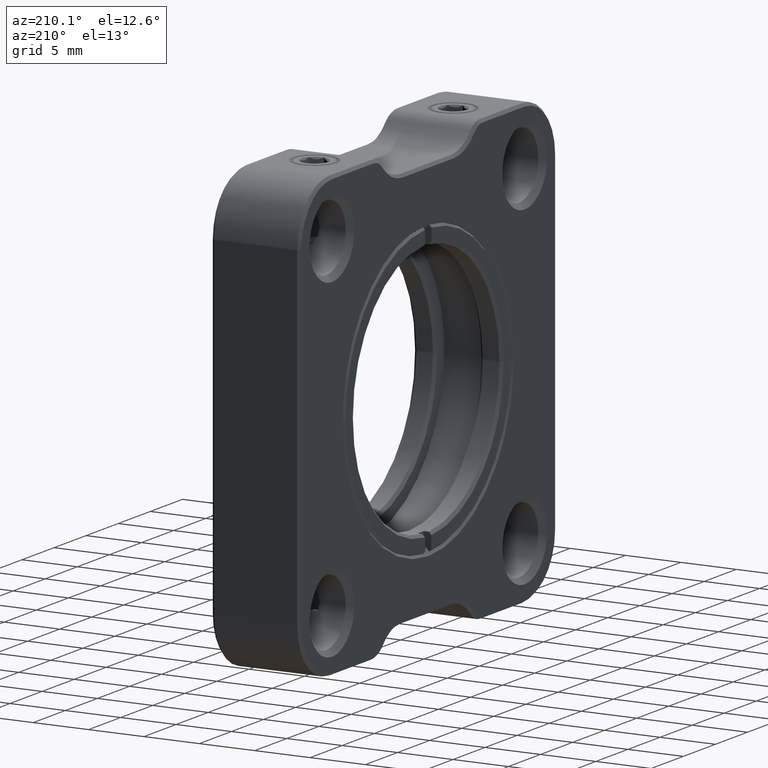
[diagram: clean part render]
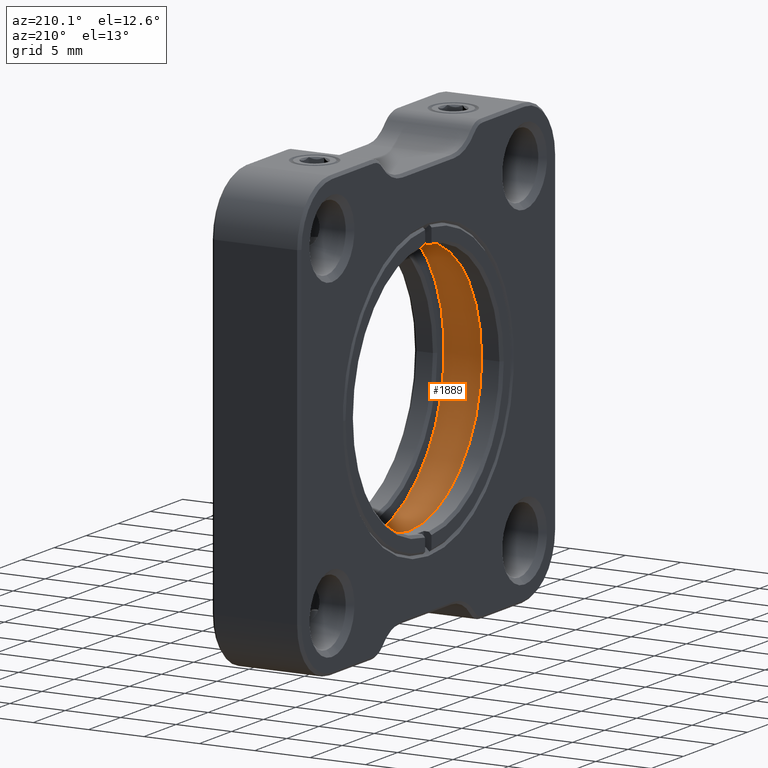
[diagram: same view with one face highlighted and labeled with its STEP entity id]
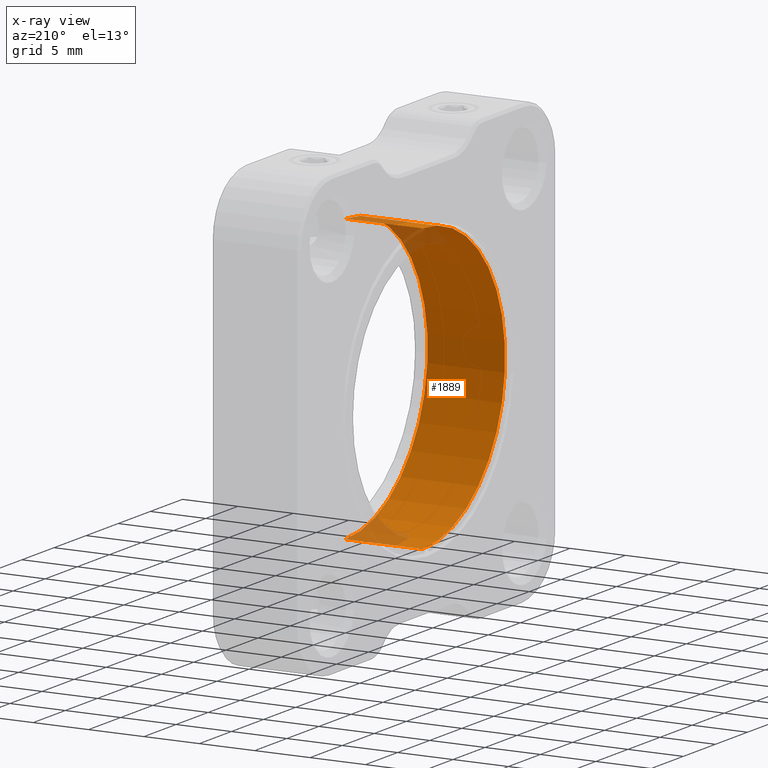
[diagram: x-ray of the same camera — body ghosted, the highlighted face saturated]
A machine part, auxiliary view. The second image highlights one B-rep face of the part: STEP entity #1889.
The next image is the same camera in x-ray: the body ghosted, the highlighted face saturated — about 8% of this face is hidden behind the body in this view.
In plain terms, the highlighted cylindrical surface (partial cylindrical patch) has radius 12.827 mm, axis along (1, -0, -0).
Its self-contained STEP definition (entity closure, byte-faithful):
#220 = EDGE_CURVE ( 'NONE', #5485, #6014, #4903, .T. ) ;
#247 = FACE_OUTER_BOUND ( 'NONE', #9667, .T. ) ;
#687 = EDGE_CURVE ( 'NONE', #5485, #3183, #7738, .T. ) ;
#949 = DIRECTION ( 'NONE',  ( -1.000000000000000000, -0.000000000000000000, -0.000000000000000000 ) ) ;
#965 = CIRCLE ( 'NONE', #7767, 12.82699999999999818 ) ;
#1061 = DIRECTION ( 'NONE',  ( 1.000000000000000000, -0.000000000000000000, -0.000000000000000000 ) ) ;
#1111 = VECTOR ( 'NONE', #4185, 1000.000000000000000 ) ;
#1677 = AXIS2_PLACEMENT_3D ( 'NONE', #4345, #6927, #8451 ) ;
#1889 = ADVANCED_FACE ( 'NONE', ( #247 ), #6467, .F. ) ;
#1999 = ORIENTED_EDGE ( 'NONE', *, *, #9359, .T. ) ;
#2545 = DIRECTION ( 'NONE',  ( 0.000000000000000000, 0.000000000000000000, -1.000000000000000000 ) ) ;
#2630 = CARTESIAN_POINT ( 'NONE',  ( -18.70960063692994879, 2.109301223409111525, 52.82700000000001239 ) ) ;
#2971 = ORIENTED_EDGE ( 'NONE', *, *, #687, .T. ) ;
#3147 = AXIS2_PLACEMENT_3D ( 'NONE', #4793, #949, #2545 ) ;
#3183 = VERTEX_POINT ( 'NONE', #8738 ) ;
#4185 = DIRECTION ( 'NONE',  ( 1.000000000000000000, -0.000000000000000000, -0.000000000000000000 ) ) ;
#4345 = CARTESIAN_POINT ( 'NONE',  ( -18.70960063692994879, 2.109301223409109749, 40.00000000000001421 ) ) ;
#4793 = CARTESIAN_POINT ( 'NONE',  ( -18.20960063692995234, 2.109301223409109749, 40.00000000000001421 ) ) ;
#4903 = LINE ( 'NONE', #7821, #1111 ) ;
#4930 = VECTOR ( 'NONE', #1061, 1000.000000000000000 ) ;
#5485 = VERTEX_POINT ( 'NONE', #7422 ) ;
#6014 = VERTEX_POINT ( 'NONE', #6942 ) ;
#6050 = DIRECTION ( 'NONE',  ( 1.000000000000000000, 0.000000000000000000, 0.000000000000000000 ) ) ;
#6089 = ORIENTED_EDGE ( 'NONE', *, *, #220, .F. ) ;
#6327 = ORIENTED_EDGE ( 'NONE', *, *, #7744, .T. ) ;
#6467 = CYLINDRICAL_SURFACE ( 'NONE', #1677, 12.82699999999999818 ) ;
#6892 = VERTEX_POINT ( 'NONE', #10094 ) ;
#6927 = DIRECTION ( 'NONE',  ( 1.000000000000000000, -0.000000000000000000, -0.000000000000000000 ) ) ;
#6942 = CARTESIAN_POINT ( 'NONE',  ( -11.20960063692995945, 2.109301223409109749, 27.17300000000001603 ) ) ;
#7257 = LINE ( 'NONE', #2630, #4930 ) ;
#7422 = CARTESIAN_POINT ( 'NONE',  ( -18.20960063692995234, 2.109301223409111525, 27.17300000000001603 ) ) ;
#7738 = CIRCLE ( 'NONE', #3147, 12.82699999999999818 ) ;
#7744 = EDGE_CURVE ( 'NONE', #3183, #6892, #7257, .T. ) ;
#7767 = AXIS2_PLACEMENT_3D ( 'NONE', #9195, #6050, #8426 ) ;
#7821 = CARTESIAN_POINT ( 'NONE',  ( -18.70960063692994879, 2.109301223409109749, 27.17300000000001603 ) ) ;
#8426 = DIRECTION ( 'NONE',  ( 0.000000000000000000, 0.000000000000000000, -1.000000000000000000 ) ) ;
#8451 = DIRECTION ( 'NONE',  ( 0.000000000000000000, 0.000000000000000000, -1.000000000000000000 ) ) ;
#8738 = CARTESIAN_POINT ( 'NONE',  ( -18.20960063692995234, 2.109301223409109749, 52.82700000000001239 ) ) ;
#9195 = CARTESIAN_POINT ( 'NONE',  ( -11.20960063692995945, 2.109301223409109749, 40.00000000000001421 ) ) ;
#9359 = EDGE_CURVE ( 'NONE', #6892, #6014, #965, .T. ) ;
#9667 = EDGE_LOOP ( 'NONE', ( #2971, #6327, #1999, #6089 ) ) ;
#10094 = CARTESIAN_POINT ( 'NONE',  ( -11.20960063692995945, 2.109301223409111525, 52.82700000000001239 ) ) ;